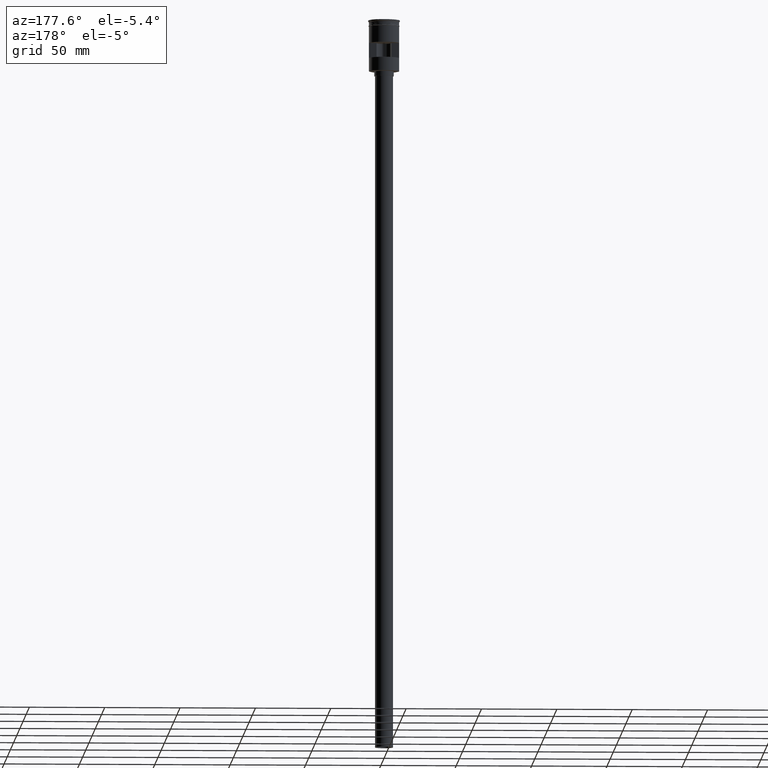
[diagram: clean part render]
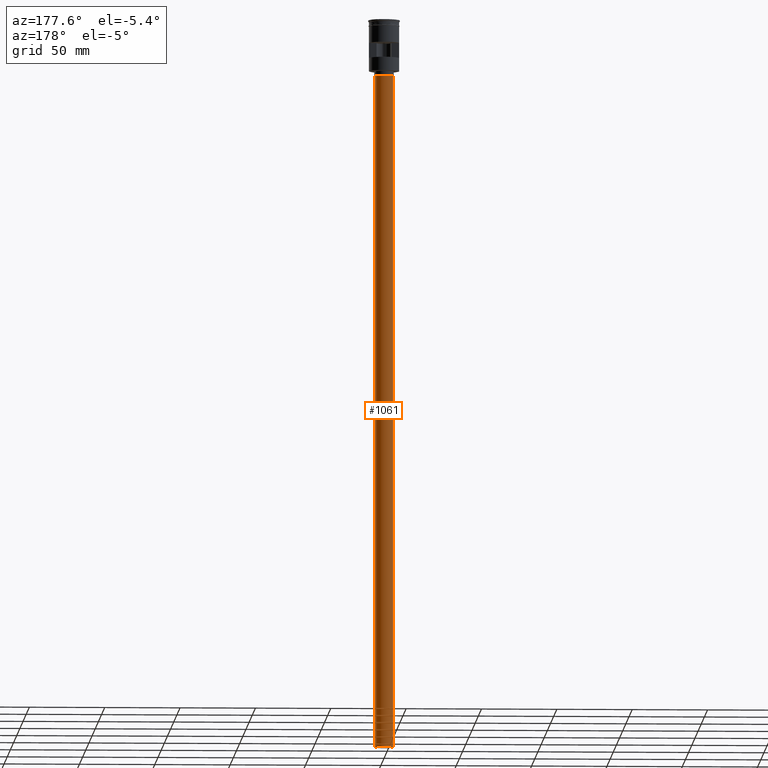
[diagram: same view with one face highlighted and labeled with its STEP entity id]
A machine part, auxiliary view. The second image highlights one B-rep face of the part: STEP entity #1061.
In plain terms, the highlighted cylindrical surface (edge-blend (fillet) strip) has radius 6 mm, axis along (-0, -0, 1).
Its self-contained STEP definition (entity closure, byte-faithful):
#3 = VECTOR ( 'NONE', #1596, 1000.000000000000000 ) ;
#34 = DIRECTION ( 'NONE',  ( -0.000000000000000000, -0.000000000000000000, 1.000000000000000000 ) ) ;
#95 = DIRECTION ( 'NONE',  ( -1.000000000000000000, 0.000000000000000000, 0.000000000000000000 ) ) ;
#123 = AXIS2_PLACEMENT_3D ( 'NONE', #347, #622, #95 ) ;
#125 = EDGE_CURVE ( 'NONE', #834, #896, #492, .T. ) ;
#206 = CARTESIAN_POINT ( 'NONE',  ( 6.000000000000000888, 0.000000000000000000, -484.0000000000000000 ) ) ;
#221 = ORIENTED_EDGE ( 'NONE', *, *, #125, .T. ) ;
#282 = FACE_OUTER_BOUND ( 'NONE', #1097, .T. ) ;
#347 = CARTESIAN_POINT ( 'NONE',  ( 0.000000000000000000, 0.000000000000000000, -37.00000000000000000 ) ) ;
#412 = VERTEX_POINT ( 'NONE', #638 ) ;
#417 = CARTESIAN_POINT ( 'NONE',  ( -6.000000000000000888, 7.347880794884120722E-16, -484.0000000000000000 ) ) ;
#490 = ORIENTED_EDGE ( 'NONE', *, *, #1595, .T. ) ;
#492 = LINE ( 'NONE', #975, #3 ) ;
#521 = CYLINDRICAL_SURFACE ( 'NONE', #1409, 6.000000000000000888 ) ;
#539 = AXIS2_PLACEMENT_3D ( 'NONE', #639, #1132, #884 ) ;
#583 = VERTEX_POINT ( 'NONE', #1228 ) ;
#622 = DIRECTION ( 'NONE',  ( 0.000000000000000000, 0.000000000000000000, -1.000000000000000000 ) ) ;
#638 = CARTESIAN_POINT ( 'NONE',  ( 6.000000000000000888, 0.000000000000000000, -484.0000000000000000 ) ) ;
#639 = CARTESIAN_POINT ( 'NONE',  ( 0.000000000000000000, 0.000000000000000000, -484.0000000000000000 ) ) ;
#777 = CIRCLE ( 'NONE', #539, 6.000000000000000888 ) ;
#834 = VERTEX_POINT ( 'NONE', #417 ) ;
#881 = EDGE_CURVE ( 'NONE', #412, #583, #920, .T. ) ;
#884 = DIRECTION ( 'NONE',  ( -1.000000000000000000, 0.000000000000000000, 0.000000000000000000 ) ) ;
#896 = VERTEX_POINT ( 'NONE', #1433 ) ;
#897 = ORIENTED_EDGE ( 'NONE', *, *, #1084, .F. ) ;
#920 = LINE ( 'NONE', #206, #1218 ) ;
#975 = CARTESIAN_POINT ( 'NONE',  ( -6.000000000000000888, 7.347880794884120722E-16, -484.0000000000000000 ) ) ;
#1061 = ADVANCED_FACE ( 'NONE', ( #282 ), #521, .T. ) ;
#1081 = DIRECTION ( 'NONE',  ( -0.000000000000000000, -0.000000000000000000, 1.000000000000000000 ) ) ;
#1084 = EDGE_CURVE ( 'NONE', #834, #412, #777, .T. ) ;
#1097 = EDGE_LOOP ( 'NONE', ( #897, #221, #490, #1519 ) ) ;
#1132 = DIRECTION ( 'NONE',  ( 0.000000000000000000, 0.000000000000000000, -1.000000000000000000 ) ) ;
#1218 = VECTOR ( 'NONE', #1081, 1000.000000000000000 ) ;
#1228 = CARTESIAN_POINT ( 'NONE',  ( 6.000000000000000888, 0.000000000000000000, -37.00000000000000000 ) ) ;
#1237 = CIRCLE ( 'NONE', #123, 6.000000000000000888 ) ;
#1245 = DIRECTION ( 'NONE',  ( 1.000000000000000000, 0.000000000000000000, 0.000000000000000000 ) ) ;
#1381 = CARTESIAN_POINT ( 'NONE',  ( 0.000000000000000000, 0.000000000000000000, -484.0000000000000000 ) ) ;
#1409 = AXIS2_PLACEMENT_3D ( 'NONE', #1381, #34, #1245 ) ;
#1433 = CARTESIAN_POINT ( 'NONE',  ( -6.000000000000000888, 7.347880794884120722E-16, -37.00000000000000000 ) ) ;
#1519 = ORIENTED_EDGE ( 'NONE', *, *, #881, .F. ) ;
#1595 = EDGE_CURVE ( 'NONE', #896, #583, #1237, .T. ) ;
#1596 = DIRECTION ( 'NONE',  ( -0.000000000000000000, -0.000000000000000000, 1.000000000000000000 ) ) ;